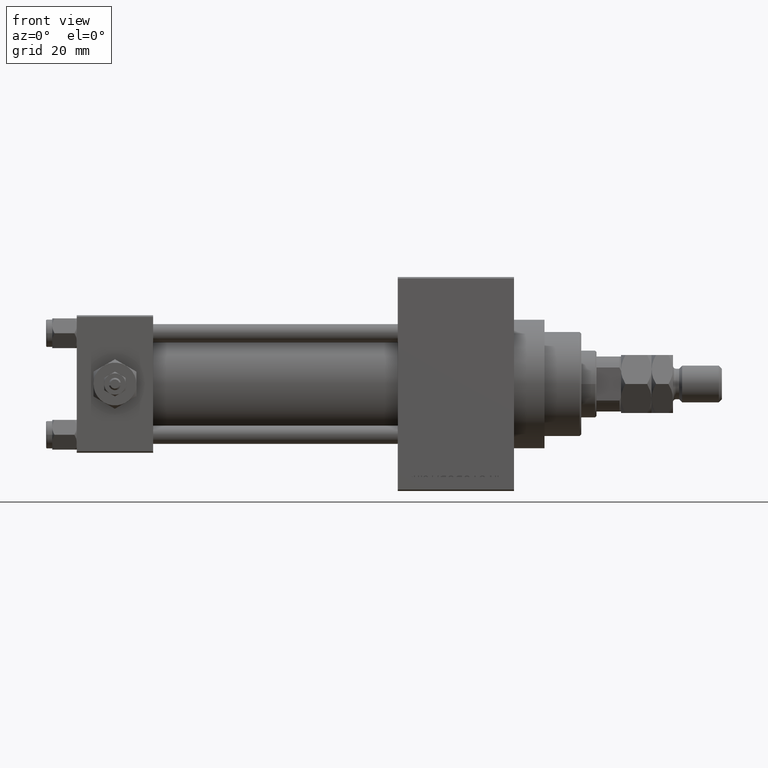
[diagram: clean part render]
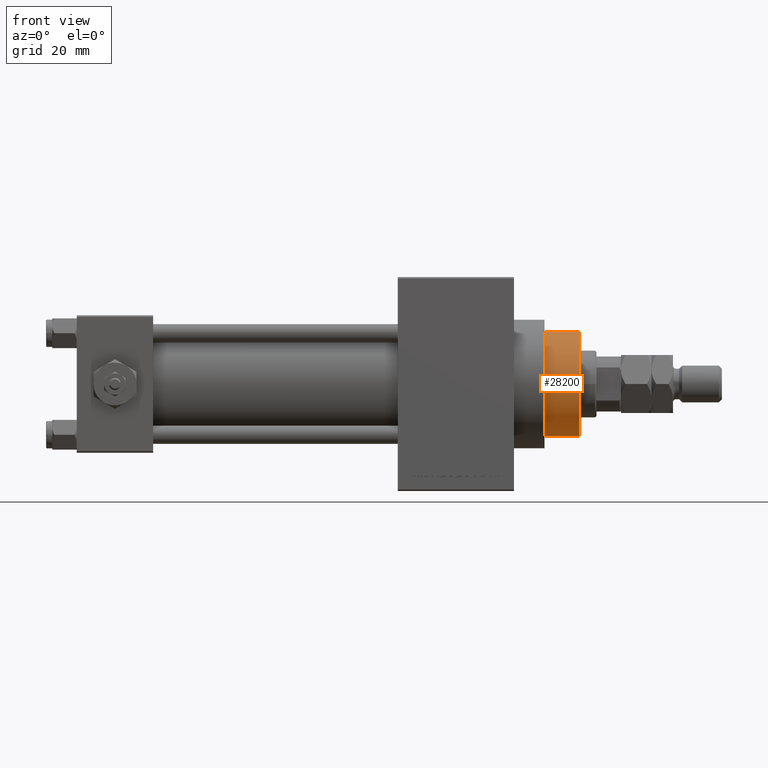
[diagram: same view with one face highlighted and labeled with its STEP entity id]
A machine part, front view. The second image highlights one B-rep face of the part: STEP entity #28200.
In plain terms, the highlighted cylindrical surface (partial cylindrical patch) has radius 17 mm, axis along (-1, 0, 0).
Its self-contained STEP definition (entity closure, byte-faithful):
#1335 = VERTEX_POINT ( 'NONE', #31767 ) ;
#1806 = VERTEX_POINT ( 'NONE', #27336 ) ;
#2963 = EDGE_CURVE ( 'NONE', #1335, #31125, #32098, .T. ) ;
#4419 = DIRECTION ( 'NONE',  ( -0.000000000000000000, -0.000000000000000000, -1.000000000000000000 ) ) ;
#5781 = ORIENTED_EDGE ( 'NONE', *, *, #42563, .T. ) ;
#6351 = ORIENTED_EDGE ( 'NONE', *, *, #2963, .T. ) ;
#6459 = EDGE_LOOP ( 'NONE', ( #7833, #6351, #5781, #10224 ) ) ;
#7833 = ORIENTED_EDGE ( 'NONE', *, *, #21798, .T. ) ;
#9095 = DIRECTION ( 'NONE',  ( 0.000000000000000000, 0.000000000000000000, 1.000000000000000000 ) ) ;
#9325 = AXIS2_PLACEMENT_3D ( 'NONE', #39814, #40060, #44626 ) ;
#10224 = ORIENTED_EDGE ( 'NONE', *, *, #21816, .F. ) ;
#12864 = CYLINDRICAL_SURFACE ( 'NONE', #9325, 17.00000000000000000 ) ;
#14257 = VECTOR ( 'NONE', #4419, 1000.000000000000000 ) ;
#14627 = DIRECTION ( 'NONE',  ( 1.000000000000000000, 0.000000000000000000, 0.000000000000000000 ) ) ;
#15126 = DIRECTION ( 'NONE',  ( 0.000000000000000000, 0.000000000000000000, -1.000000000000000000 ) ) ;
#15350 = AXIS2_PLACEMENT_3D ( 'NONE', #20506, #9095, #47187 ) ;
#17416 = FACE_OUTER_BOUND ( 'NONE', #6459, .T. ) ;
#19184 = DIRECTION ( 'NONE',  ( -0.000000000000000000, -0.000000000000000000, -1.000000000000000000 ) ) ;
#20506 = CARTESIAN_POINT ( 'NONE',  ( 0.000000000000000000, 0.000000000000000000, 43.25999999999999801 ) ) ;
#21798 = EDGE_CURVE ( 'NONE', #41758, #1335, #33529, .T. ) ;
#21816 = EDGE_CURVE ( 'NONE', #41758, #1806, #38513, .T. ) ;
#22971 = AXIS2_PLACEMENT_3D ( 'NONE', #26308, #15126, #14627 ) ;
#24305 = CIRCLE ( 'NONE', #15350, 17.00000000000000000 ) ;
#24720 = CARTESIAN_POINT ( 'NONE',  ( 17.00000000000000000, 2.081899558550500280E-15, 55.26000000000000512 ) ) ;
#26308 = CARTESIAN_POINT ( 'NONE',  ( 0.000000000000000000, 0.000000000000000000, 54.76000000000001222 ) ) ;
#27336 = CARTESIAN_POINT ( 'NONE',  ( -17.00000000000000000, 0.000000000000000000, 43.25999999999999801 ) ) ;
#28200 = ADVANCED_FACE ( 'NONE', ( #17416 ), #12864, .T. ) ;
#28866 = CARTESIAN_POINT ( 'NONE',  ( -17.00000000000000000, 0.000000000000000000, 54.76000000000001222 ) ) ;
#30113 = CARTESIAN_POINT ( 'NONE',  ( -17.00000000000000000, 0.000000000000000000, 55.26000000000000512 ) ) ;
#30284 = VECTOR ( 'NONE', #19184, 1000.000000000000000 ) ;
#31125 = VERTEX_POINT ( 'NONE', #50018 ) ;
#31767 = CARTESIAN_POINT ( 'NONE',  ( 17.00000000000000000, 2.081899558550500280E-15, 54.76000000000001222 ) ) ;
#32098 = LINE ( 'NONE', #24720, #14257 ) ;
#33529 = CIRCLE ( 'NONE', #22971, 17.00000000000000000 ) ;
#38513 = LINE ( 'NONE', #30113, #30284 ) ;
#39814 = CARTESIAN_POINT ( 'NONE',  ( 0.000000000000000000, 0.000000000000000000, 55.26000000000000512 ) ) ;
#40060 = DIRECTION ( 'NONE',  ( -0.000000000000000000, -0.000000000000000000, -1.000000000000000000 ) ) ;
#41758 = VERTEX_POINT ( 'NONE', #28866 ) ;
#42563 = EDGE_CURVE ( 'NONE', #31125, #1806, #24305, .T. ) ;
#44626 = DIRECTION ( 'NONE',  ( -1.000000000000000000, 0.000000000000000000, 0.000000000000000000 ) ) ;
#47187 = DIRECTION ( 'NONE',  ( 1.000000000000000000, 0.000000000000000000, 0.000000000000000000 ) ) ;
#50018 = CARTESIAN_POINT ( 'NONE',  ( 17.00000000000000000, 2.081899558550500280E-15, 43.25999999999999801 ) ) ;